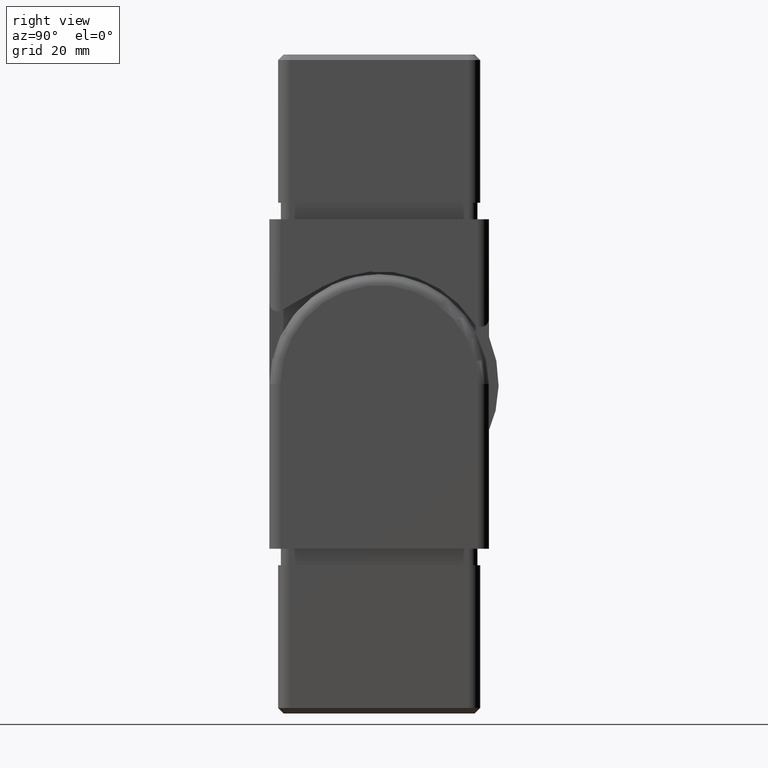
[diagram: clean part render]
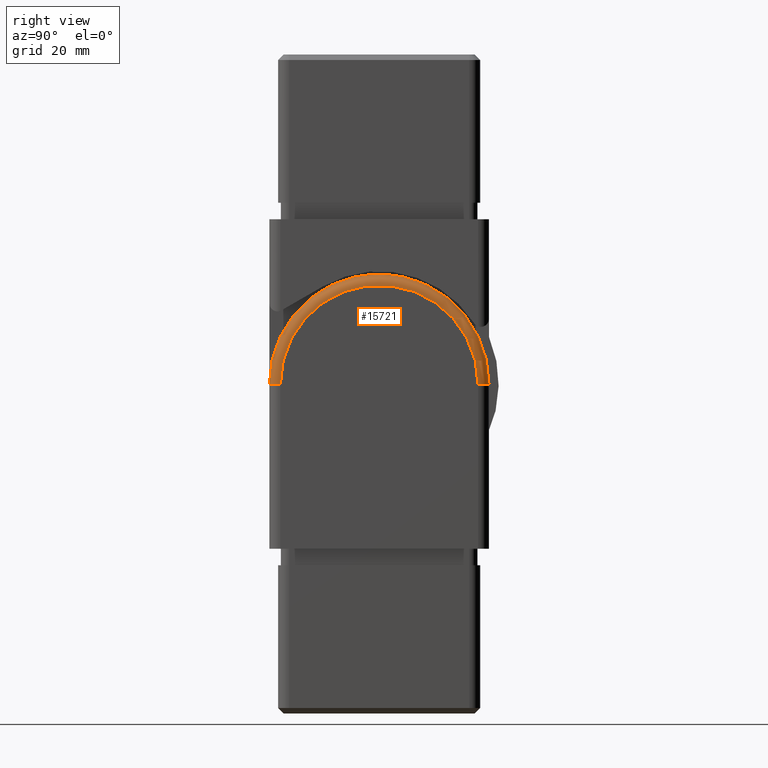
[diagram: same view with one face highlighted and labeled with its STEP entity id]
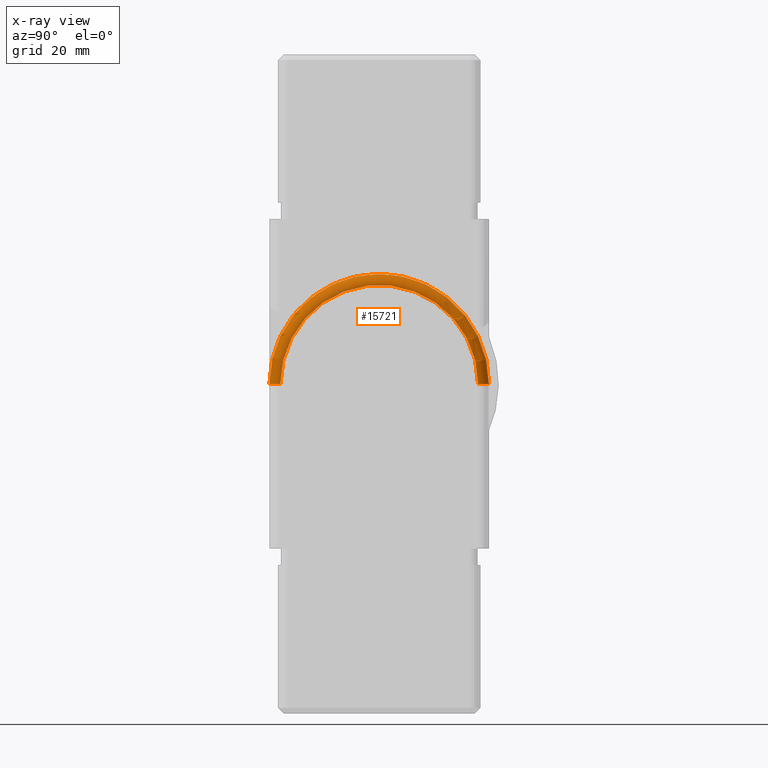
[diagram: x-ray of the same camera — body ghosted, the highlighted face saturated]
A machine part, right view. The second image highlights one B-rep face of the part: STEP entity #15721.
The next image is the same camera in x-ray: the body ghosted, the highlighted face saturated — about 0% of this face is hidden behind the body in this view.
In plain terms, the highlighted toroidal blend (fillet) surface has major radius 18 mm and minor (blend) radius 2 mm.
Its self-contained STEP definition (entity closure, byte-faithful):
#117 = CIRCLE ( 'NONE', #12915, 20.00000000000000000 ) ;
#1732 = CIRCLE ( 'NONE', #12311, 2.000000000000001800 ) ;
#2150 = CIRCLE ( 'NONE', #5746, 2.000000000000001800 ) ;
#2918 = AXIS2_PLACEMENT_3D ( 'NONE', #7788, #13852, #21348 ) ;
#4773 = ORIENTED_EDGE ( 'NONE', *, *, #24644, .T. ) ;
#4809 = CARTESIAN_POINT ( 'NONE',  ( -19.99999999999998900, 0.0000000000000000000, -30.00000000000000400 ) ) ;
#5746 = AXIS2_PLACEMENT_3D ( 'NONE', #16667, #6928, #6487 ) ;
#5903 = CARTESIAN_POINT ( 'NONE',  ( -17.99999999999998900, -18.00000000000000400, -30.00000000000000700 ) ) ;
#6487 = DIRECTION ( 'NONE',  ( 1.000000000000000000, 0.0000000000000000000, 0.0000000000000000000 ) ) ;
#6928 = DIRECTION ( 'NONE',  ( 0.0000000000000000000, 0.0000000000000000000, 1.000000000000000000 ) ) ;
#6982 = CARTESIAN_POINT ( 'NONE',  ( -17.99999999999998900, 0.0000000000000000000, -30.00000000000000400 ) ) ;
#7788 = CARTESIAN_POINT ( 'NONE',  ( -17.99999999999998900, 0.0000000000000000000, -30.00000000000000400 ) ) ;
#7971 = DIRECTION ( 'NONE',  ( 0.0000000000000000000, 0.0000000000000000000, -1.000000000000000000 ) ) ;
#10940 = VERTEX_POINT ( 'NONE', #12582 ) ;
#11228 = EDGE_LOOP ( 'NONE', ( #4773, #17703, #24189, #17918 ) ) ;
#11657 = FACE_OUTER_BOUND ( 'NONE', #11228, .T. ) ;
#11979 = AXIS2_PLACEMENT_3D ( 'NONE', #4809, #20772, #12768 ) ;
#12311 = AXIS2_PLACEMENT_3D ( 'NONE', #5903, #7971, #25365 ) ;
#12479 = CIRCLE ( 'NONE', #11979, 18.00000000000000400 ) ;
#12582 = CARTESIAN_POINT ( 'NONE',  ( -17.99999999999998900, -20.00000000000000000, -30.00000000000000700 ) ) ;
#12768 = DIRECTION ( 'NONE',  ( 0.0000000000000000000, 0.0000000000000000000, 1.000000000000000000 ) ) ;
#12886 = VERTEX_POINT ( 'NONE', #15945 ) ;
#12887 = DIRECTION ( 'NONE',  ( 1.000000000000000000, -0.0000000000000000000, -0.0000000000000000000 ) ) ;
#12915 = AXIS2_PLACEMENT_3D ( 'NONE', #6982, #12887, #13058 ) ;
#13058 = DIRECTION ( 'NONE',  ( 0.0000000000000000000, 0.0000000000000000000, 1.000000000000000000 ) ) ;
#13330 = CARTESIAN_POINT ( 'NONE',  ( -17.99999999999998900, 20.00000000000000000, -30.00000000000000400 ) ) ;
#13852 = DIRECTION ( 'NONE',  ( -1.000000000000000000, 0.0000000000000000000, 0.0000000000000000000 ) ) ;
#15721 = ADVANCED_FACE ( 'NONE', ( #11657 ), #18687, .T. ) ;
#15945 = CARTESIAN_POINT ( 'NONE',  ( -19.99999999999998900, -18.00000000000000400, -30.00000000000000700 ) ) ;
#16667 = CARTESIAN_POINT ( 'NONE',  ( -17.99999999999998900, 18.00000000000000400, -30.00000000000000400 ) ) ;
#17703 = ORIENTED_EDGE ( 'NONE', *, *, #24446, .F. ) ;
#17918 = ORIENTED_EDGE ( 'NONE', *, *, #18209, .F. ) ;
#18209 = EDGE_CURVE ( 'NONE', #10940, #19918, #117, .T. ) ;
#18687 = TOROIDAL_SURFACE ( 'NONE', #2918, 18.00000000000000400, 2.000000000000000000 ) ;
#19263 = VERTEX_POINT ( 'NONE', #20363 ) ;
#19918 = VERTEX_POINT ( 'NONE', #13330 ) ;
#20363 = CARTESIAN_POINT ( 'NONE',  ( -19.99999999999998900, 18.00000000000000400, -30.00000000000000400 ) ) ;
#20772 = DIRECTION ( 'NONE',  ( -1.000000000000000000, 0.0000000000000000000, 0.0000000000000000000 ) ) ;
#21348 = DIRECTION ( 'NONE',  ( 0.0000000000000000000, 0.0000000000000000000, 1.000000000000000000 ) ) ;
#21568 = EDGE_CURVE ( 'NONE', #19918, #19263, #2150, .T. ) ;
#24189 = ORIENTED_EDGE ( 'NONE', *, *, #21568, .F. ) ;
#24446 = EDGE_CURVE ( 'NONE', #19263, #12886, #12479, .T. ) ;
#24644 = EDGE_CURVE ( 'NONE', #10940, #12886, #1732, .T. ) ;
#25365 = DIRECTION ( 'NONE',  ( -1.000000000000000000, 0.0000000000000000000, 0.0000000000000000000 ) ) ;